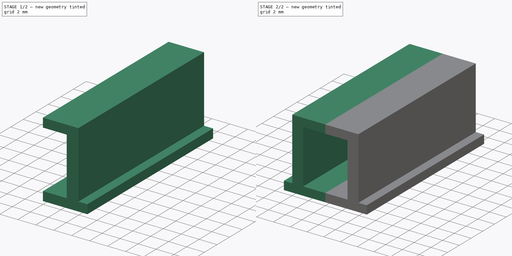
[diagram: build sequence overview — one tinted view per stage of 2, left to right]
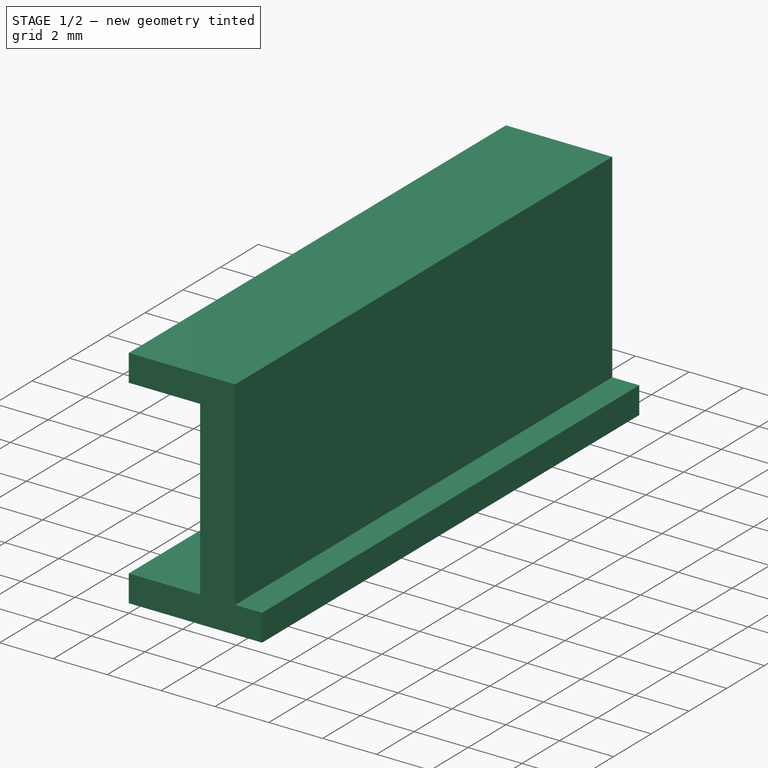
[diagram: stage 1 of 2 — iso view after this stage's code; geometry added in this stage tinted green]
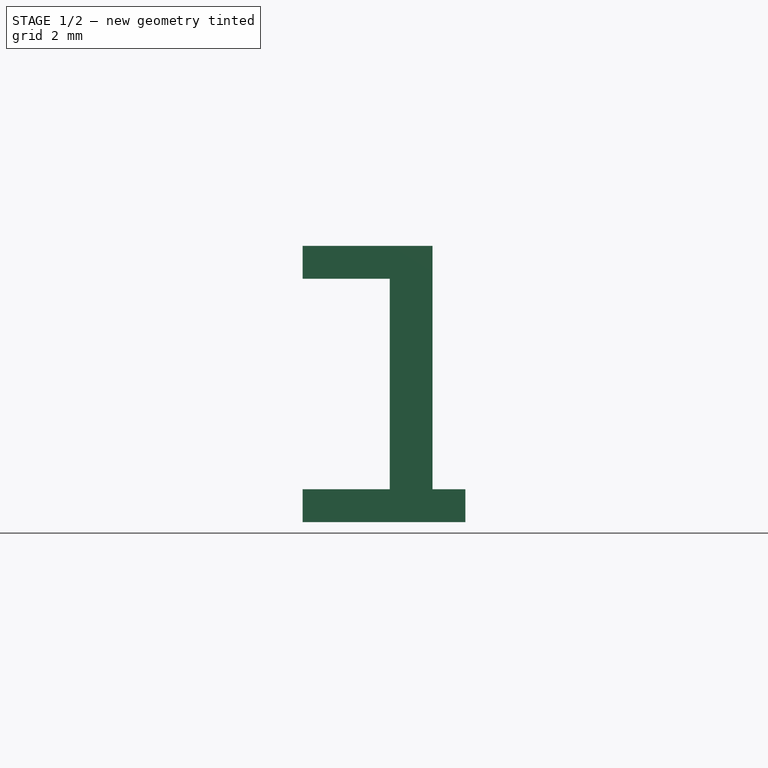
[diagram: stage 1 of 2 — front view after this stage's code; geometry added in this stage tinted green]
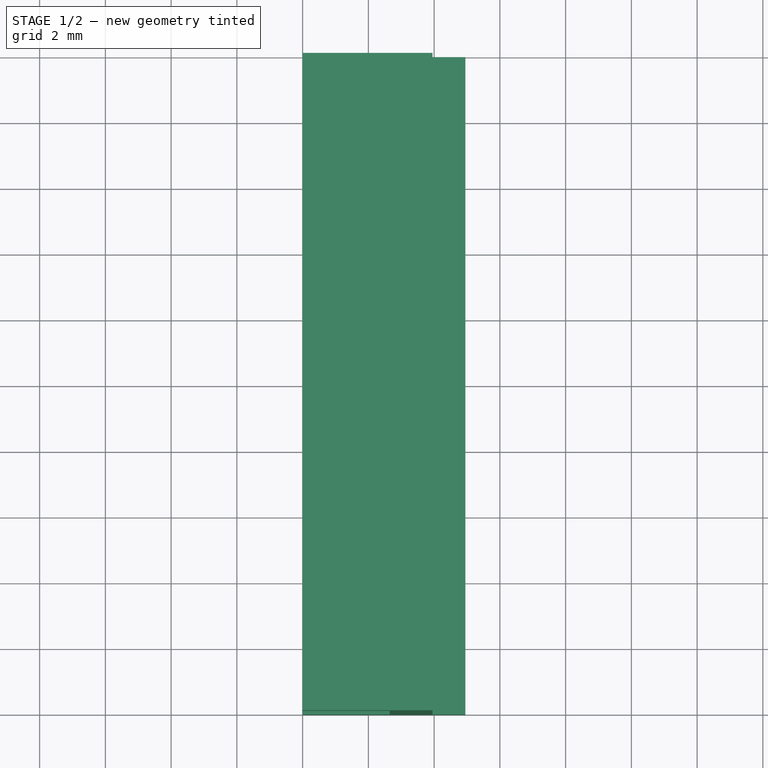
[diagram: stage 1 of 2 — top view after this stage's code; geometry added in this stage tinted green]
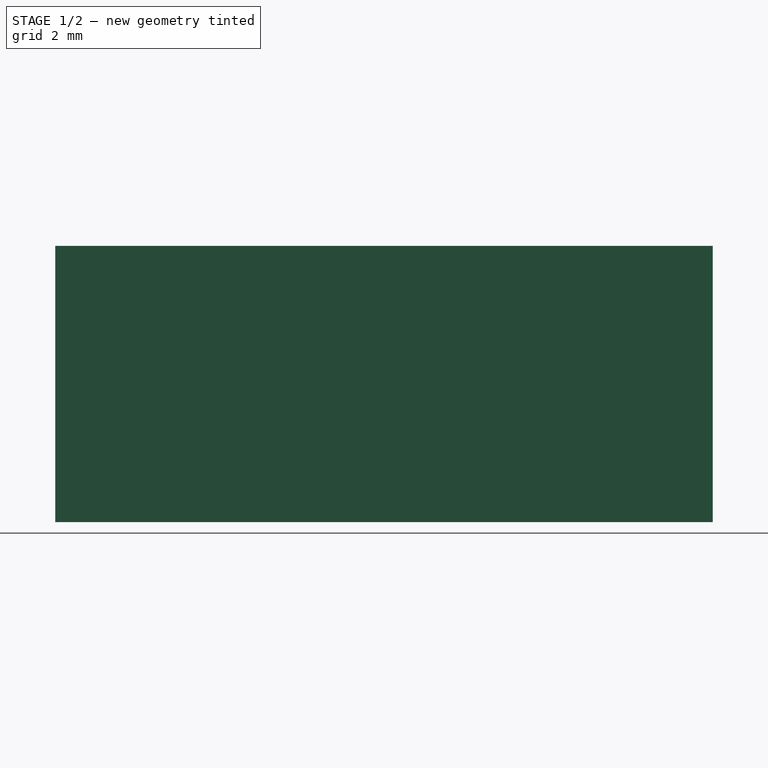
[diagram: stage 1 of 2 — right view after this stage's code; geometry added in this stage tinted green]
FCSTD DOCUMENT  (FreeCAD 0.19R24291 (Git))
Label: крепёж геркона
License: All rights reserved
LicenseURL: http://en.wikipedia.org/wiki/All_rights_reserved
objects: Sketcher::SketchObject×1, PartDesign::Pad×1, PartDesign::Mirrored×1, PartDesign::Body×1
note: 5 computed .brp shape members not serialized (recipe doc carries the construction recipe); baked Part::Feature solids carry a one-line shape summary decoded from their .brp

FEATURE [Sketcher::SketchObject] Sketch
  FullyConstrained = true
  MapMode = 5
  Placement = pos=(0,0,0) rot=(1,0,0;1.5708rad)
  Support = -> [XZ_Plane]
  sketch-geometry (10):
    g0: LineSegment StartX=3.95 StartY=8.4 StartZ=0 EndX=3.95 EndY=1 EndZ=0
    g1: LineSegment StartX=2.65 StartY=1 StartZ=0 EndX=2.65 EndY=7.4 EndZ=0
    g2: LineSegment StartX=2.65 StartY=7.4 StartZ=0 EndX=0 EndY=7.4 EndZ=0
    g3: LineSegment StartX=0 StartY=7.4 StartZ=0 EndX=0 EndY=8.4 EndZ=0
    g4: LineSegment StartX=0 StartY=8.4 StartZ=0 EndX=3.95 EndY=8.4 EndZ=0
    g5: LineSegment StartX=2.65 StartY=1 StartZ=0 EndX=0 EndY=1 EndZ=0
    g6: LineSegment StartX=0 StartY=1 StartZ=0 EndX=0 EndY=0 EndZ=0
    g7: LineSegment StartX=0 StartY=0 StartZ=0 EndX=4.95 EndY=0 EndZ=0
    g8: LineSegment StartX=4.95 StartY=0 StartZ=0 EndX=4.95 EndY=1 EndZ=0
    g9: LineSegment StartX=4.95 StartY=1 StartZ=0 EndX=3.95 EndY=1 EndZ=0
  constraints (29):
    c: Vertical(g0)
    c: Distance(g0,g-2) = 3.95
    c: Distance(g0,g-1) = 1
    c: Vertical(g1)
    c: Distance(g1,g-1) = 1
    c: Distance(g1,g-2) = 2.65
    c: Distance(g1) = 6.4
    c: Coincident(g2,g1)
    c: PointOnObject(g2,g-2)
    c: Horizontal(g2)
    c: Coincident(g3,g2)
    c: PointOnObject(g3,g-2)
    c: Coincident(g4,g3)
    c: Coincident(g4,g0)
    c: Horizontal(g4)
    c: Distance(g3) = 1
    c: Coincident(g5,g1)
    c: PointOnObject(g5,g-2)
    c: Horizontal(g5)
    c: Coincident(g6,g5)
    c: Coincident(g6,g-1)
    c: Coincident(g7,g6)
    c: PointOnObject(g7,g-1)
    c: Coincident(g8,g7)
    c: Vertical(g8)
    c: Coincident(g9,g8)
    c: Coincident(g9,g0)
    c: Horizontal(g9)
    c: Distance(g9) = 1
FEATURE [PartDesign::Pad] Pad
  Direction = (1,1,1)
  Length = 20
  Length2 = 100
  Placement = pos=(0,0,0) rot=(1,0,0;1.5708rad)
  Profile = -> Sketch
  Type = 0
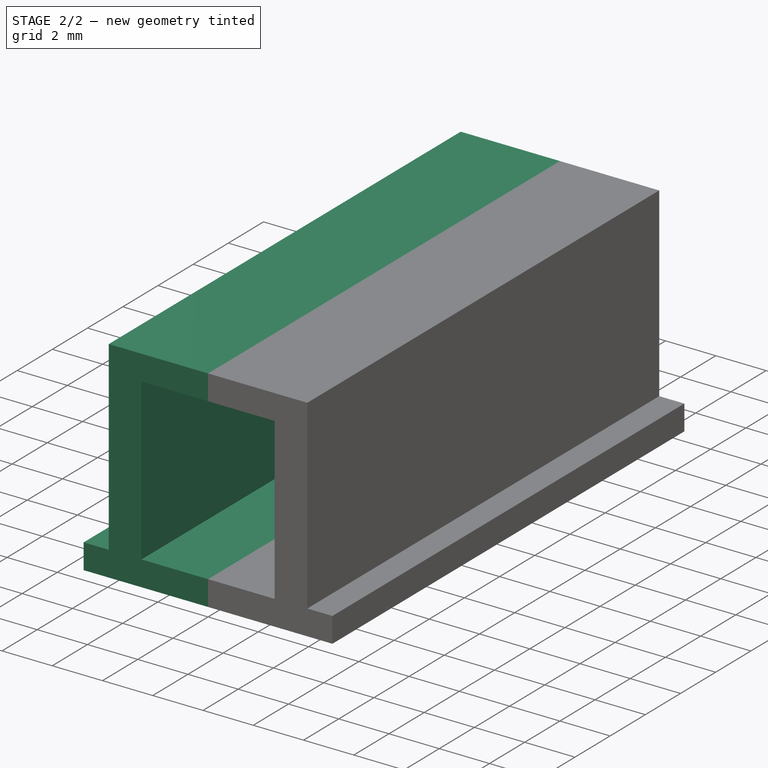
[diagram: stage 2 of 2 — iso view after this stage's code; geometry added in this stage tinted green]
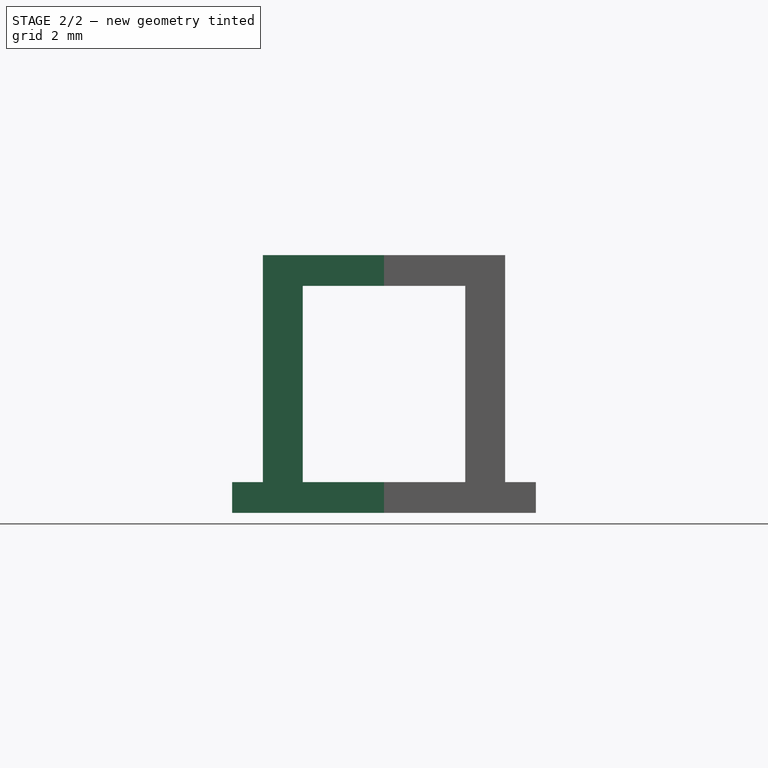
[diagram: stage 2 of 2 — front view after this stage's code; geometry added in this stage tinted green]
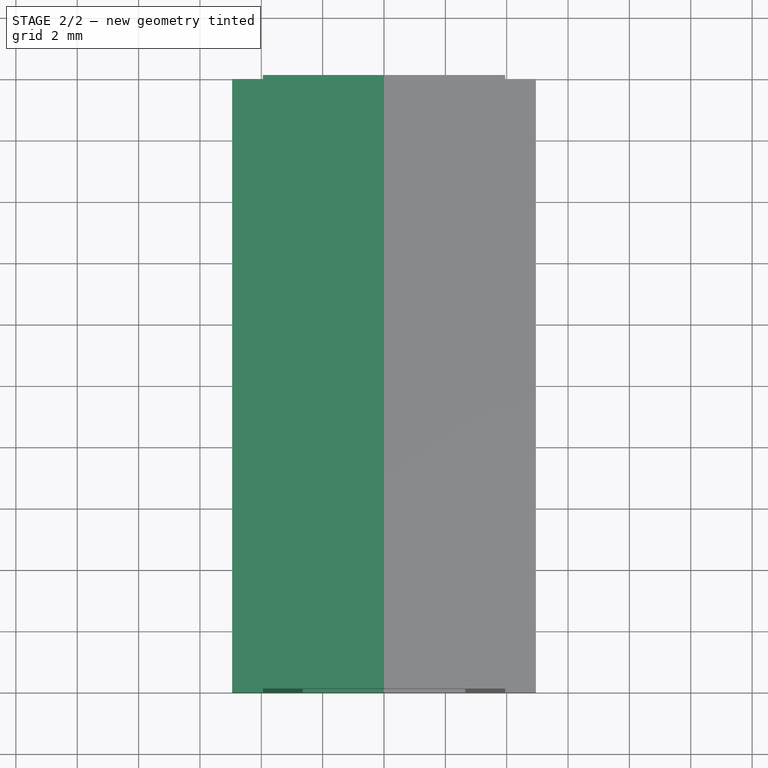
[diagram: stage 2 of 2 — top view after this stage's code; geometry added in this stage tinted green]
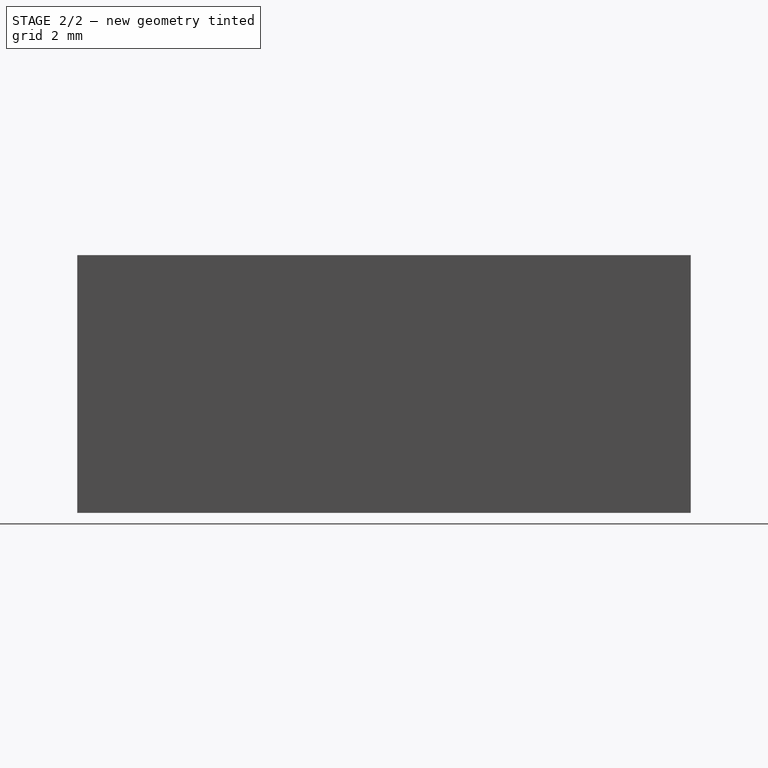
[diagram: stage 2 of 2 — right view after this stage's code; geometry added in this stage tinted green]
FEATURE [PartDesign::Mirrored] Mirrored
  BaseFeature = -> Pad
  MirrorPlane = -> Sketch [V_Axis]
  Originals = -> [Pad]
  Placement = pos=(0,0,0) rot=(1,0,0;1.5708rad)
FEATURE [PartDesign::Body] Body
  Group = -> [Sketch,Pad,Mirrored]
  Origin = -> Origin
  Tip = -> Mirrored
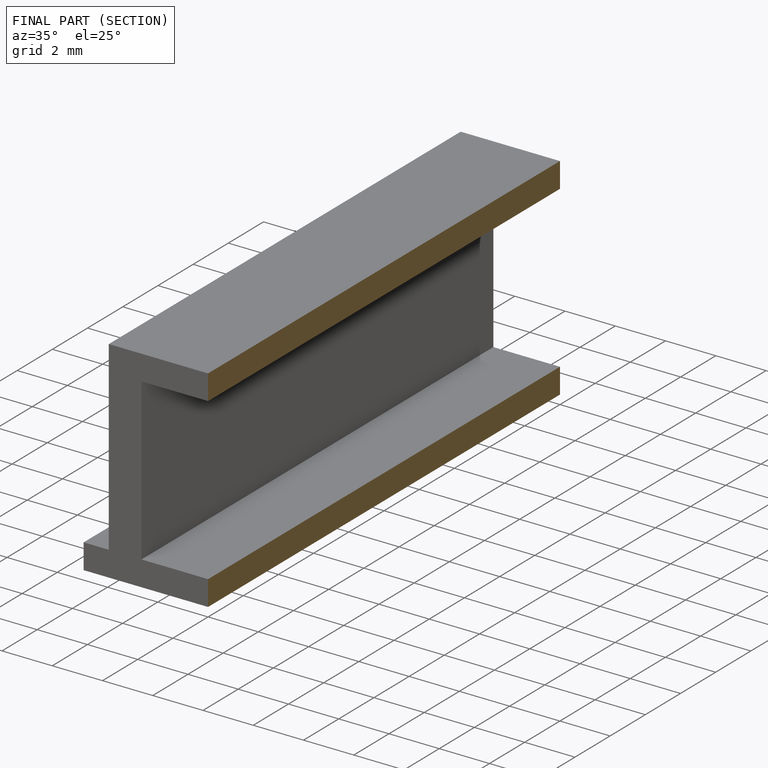
[diagram: finished part — half-section view (interior)]
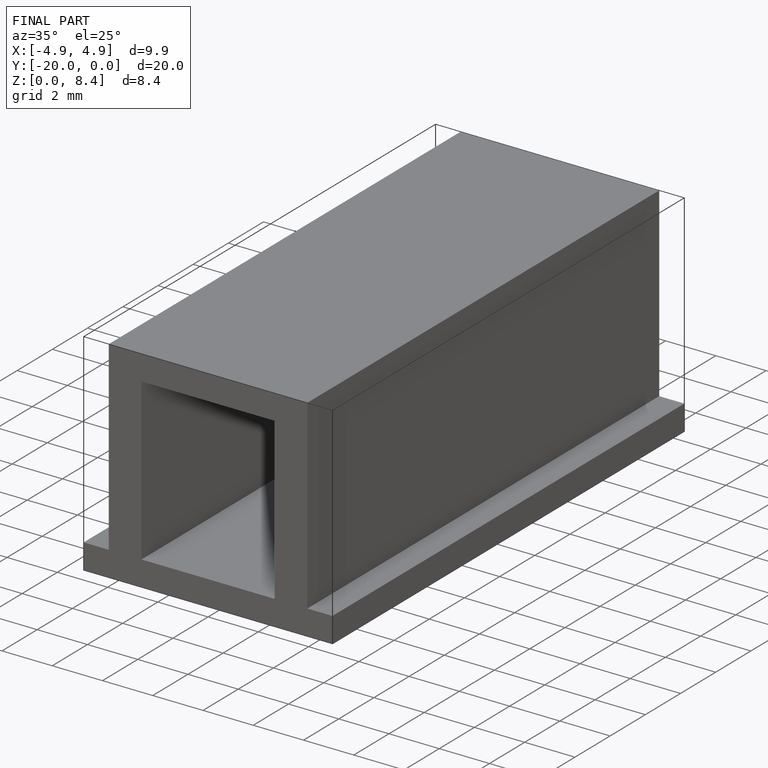
[diagram: finished part — iso view with bounding-box wireframe]
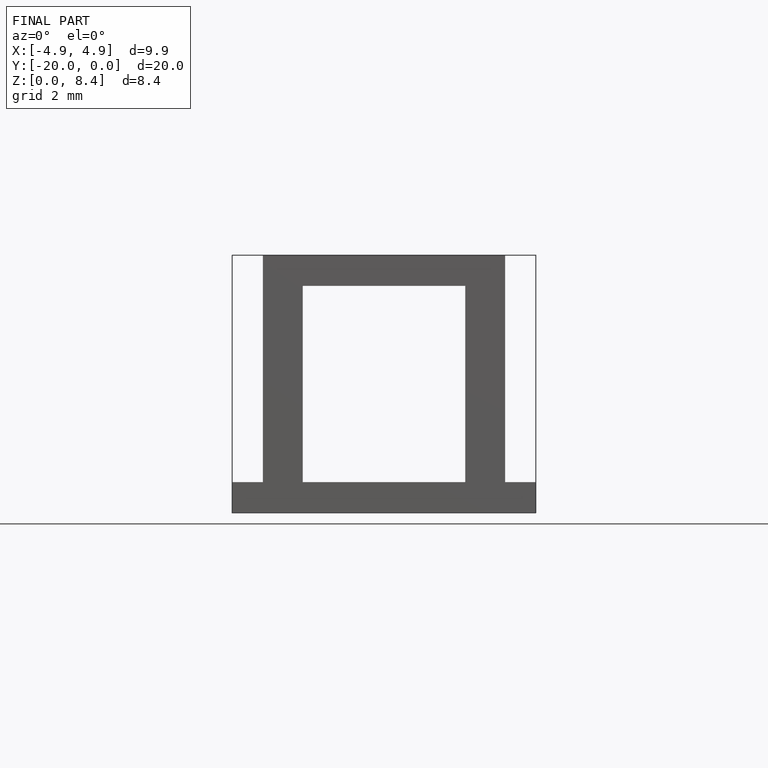
[diagram: finished part — front view with bounding-box wireframe]
